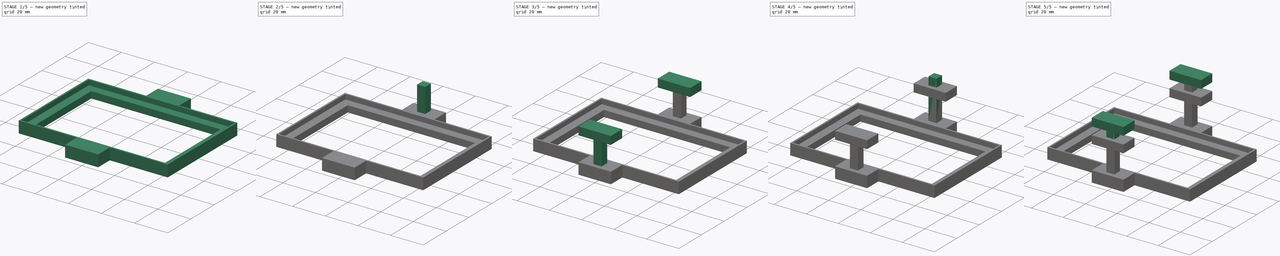
[diagram: build sequence overview — one tinted view per stage of 5, left to right]
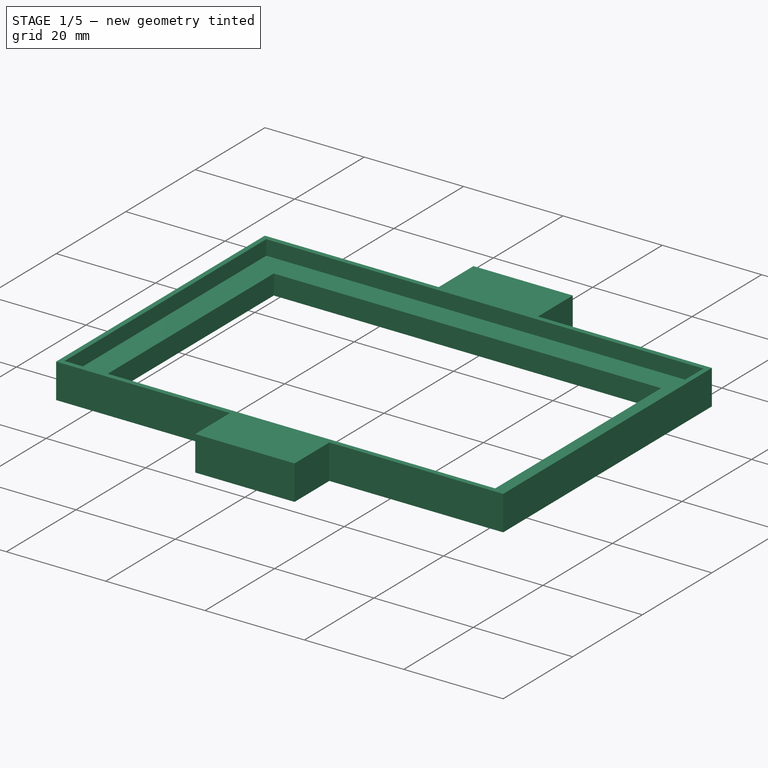
[diagram: stage 1 of 5 — iso view after this stage's code; geometry added in this stage tinted green]
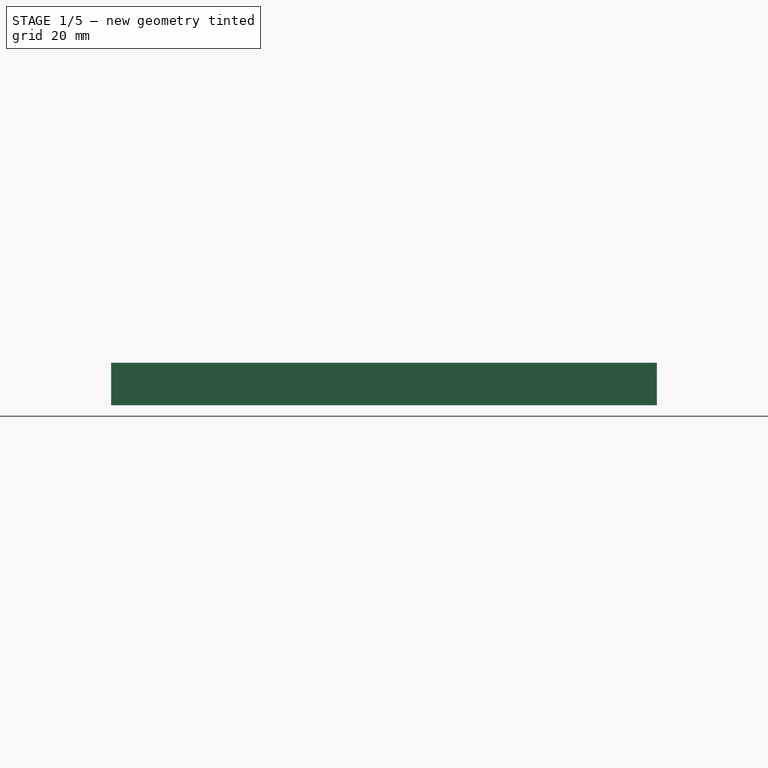
[diagram: stage 1 of 5 — front view after this stage's code; geometry added in this stage tinted green]
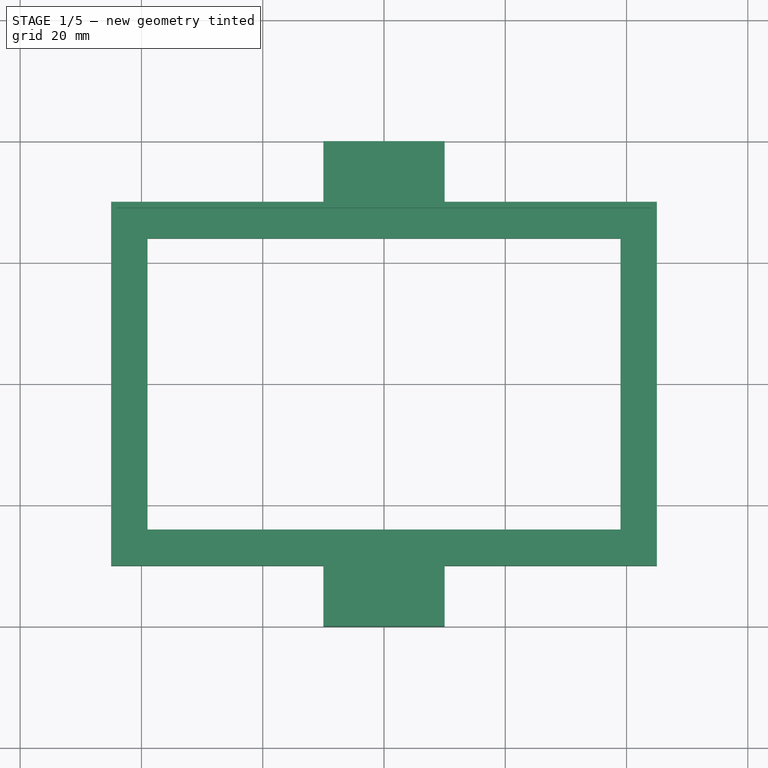
[diagram: stage 1 of 5 — top view after this stage's code; geometry added in this stage tinted green]
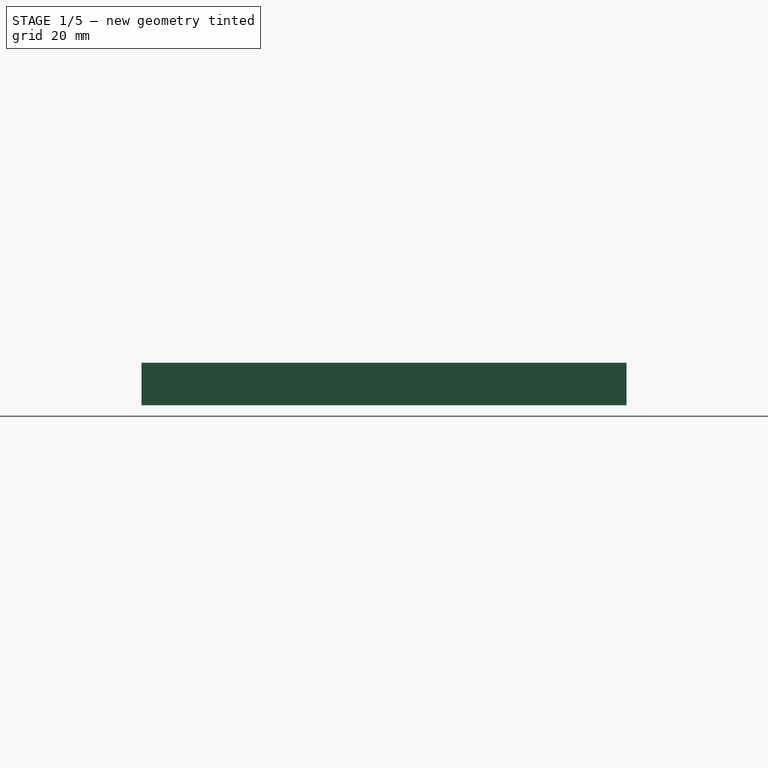
[diagram: stage 1 of 5 — right view after this stage's code; geometry added in this stage tinted green]
FCSTD DOCUMENT  (FreeCAD 0.19R24276 (Git))
Label: Gestell
License: All rights reserved
LicenseURL: http://en.wikipedia.org/wiki/All_rights_reserved
objects: Sketcher::SketchObject×17, PartDesign::Pad×11, PartDesign::Pocket×6, PartDesign::Body×3
note: 54 computed .brp shape members not serialized (recipe doc carries the construction recipe); baked Part::Feature solids carry a one-line shape summary decoded from their .brp

FEATURE [PartDesign::Body] Body001  label="unten"
  Group = -> [Sketch012,Pad006,Sketch010,Pocket003,Sketch011,Pocket002,Sketch016,Sketch014,Pad007,Pad005,Sketch015,Sketch013,Pad008,Pad009]
  Origin = -> Origin001
  Tip = -> Pad009
FEATURE [Sketcher::SketchObject] Sketch019
  FullyConstrained = false
  sketch-geometry (12):
    g0: LineSegment StartX=45 StartY=30 StartZ=0 EndX=45 EndY=-30 EndZ=0
    g1: LineSegment StartX=-45 StartY=-30 StartZ=0 EndX=-45 EndY=30 EndZ=0
    g2: LineSegment StartX=10 StartY=-30 StartZ=0 EndX=10 EndY=-40 EndZ=0
    g3: LineSegment StartX=10 StartY=-40 StartZ=0 EndX=-10 EndY=-40 EndZ=0
    g4: LineSegment StartX=-10 StartY=-40 StartZ=0 EndX=-10 EndY=-30 EndZ=0
    g5: LineSegment StartX=-10 StartY=40 StartZ=0 EndX=10 EndY=40 EndZ=0
    g6: LineSegment StartX=10 StartY=40 StartZ=0 EndX=10 EndY=30 EndZ=0
    g7: LineSegment StartX=-10 StartY=30 StartZ=0 EndX=-10 EndY=40 EndZ=0
    g8: LineSegment StartX=10 StartY=-30 StartZ=0 EndX=45 EndY=-30 EndZ=0
    g9: LineSegment StartX=-45 StartY=30 StartZ=0 EndX=-10 EndY=30 EndZ=0
    g10: LineSegment StartX=10 StartY=30 StartZ=0 EndX=45 EndY=30 EndZ=0
    g11: LineSegment StartX=-10 StartY=-30 StartZ=0 EndX=-45 EndY=-30 EndZ=0
  constraints (34):
    c: Vertical(g0)
    c: Vertical(g1)
    c: DistanceY(g0,g0) = 60
    c: DistanceX(g1,g0) = 90
    c: DistanceY(g0,g-1) = 30
    c: DistanceX(g1,g-1) = 45
    c: Coincident(g2,g3)
    c: Coincident(g3,g4)
    c: Horizontal(g3)
    c: Vertical(g2)
    c: Vertical(g4)
    c: DistanceY(g2,g2) = 10
    c: DistanceX(g4,g2) = 20
    c: DistanceX(g4,g-1) = 10
    c: Coincident(g5,g6)
    c: Coincident(g7,g5)
    c: Horizontal(g5)
    c: Vertical(g6)
    c: Vertical(g7)
    c: DistanceY(g6,g6) = 10
    c: DistanceX(g5,g5) = 20
    c: DistanceX(g-1,g6) = 10
    c: Coincident(g8,g2)
    c: Coincident(g8,g0)
    c: Horizontal(g8)
    c: Coincident(g9,g1)
    c: Coincident(g9,g7)
    c: Horizontal(g9)
    c: Coincident(g10,g6)
    c: Coincident(g10,g0)
    c: Horizontal(g10)
    c: Coincident(g11,g4)
    c: Coincident(g11,g1)
    c: Horizontal(g11)
FEATURE [PartDesign::Pad] Pad011
  Direction = (1,1,1)
  Length = 7
  Length2 = 100
  Profile = -> Sketch019
  Type = 0
FEATURE [Sketcher::SketchObject] Sketch017
  FullyConstrained = true
  MapMode = 5
  Placement = pos=(0,0,7) rot=(0,0,1;0rad)
  Support = -> [Pad011]
  sketch-geometry (4):
    g0: LineSegment StartX=-44 StartY=29 StartZ=0 EndX=44 EndY=29 EndZ=0
    g1: LineSegment StartX=44 StartY=29 StartZ=0 EndX=44 EndY=-29 EndZ=0
    g2: LineSegment StartX=44 StartY=-29 StartZ=0 EndX=-44 EndY=-29 EndZ=0
    g3: LineSegment StartX=-44 StartY=-29 StartZ=0 EndX=-44 EndY=29 EndZ=0
  constraints (12):
    c: Coincident(g0,g1)
    c: Coincident(g1,g2)
    c: Coincident(g2,g3)
    c: Coincident(g3,g0)
    c: Horizontal(g0)
    c: Horizontal(g2)
    c: Vertical(g1)
    c: Vertical(g3)
    c: DistanceY(g1,g1) = 58
    c: DistanceX(g0,g0) = 88
    c: DistanceX(g0,g-1) = 44
    c: DistanceY(g1,g-1) = 29
FEATURE [PartDesign::Pocket] Pocket005
  BaseFeature = -> Pad011
  Length = 3
  Length2 = 100
  Profile = -> Sketch017
  Type = 0
FEATURE [Sketcher::SketchObject] Sketch018
  FullyConstrained = true
  MapMode = 5
  Placement = pos=(0,0,4) rot=(0,0,1;0rad)
  Support = -> [Pocket005]
  sketch-geometry (4):
    g0: LineSegment StartX=-39 StartY=24 StartZ=0 EndX=39 EndY=24 EndZ=0
    g1: LineSegment StartX=39 StartY=24 StartZ=0 EndX=39 EndY=-24 EndZ=0
    g2: LineSegment StartX=39 StartY=-24 StartZ=0 EndX=-39 EndY=-24 EndZ=0
    g3: LineSegment StartX=-39 StartY=-24 StartZ=0 EndX=-39 EndY=24 EndZ=0
  constraints (12):
    c: Coincident(g0,g1)
    c: Coincident(g1,g2)
    c: Coincident(g2,g3)
    c: Coincident(g3,g0)
    c: Horizontal(g0)
    c: Horizontal(g2)
    c: Vertical(g1)
    c: Vertical(g3)
    c: DistanceX(g0,g0) = 78
    c: DistanceY(g1,g1) = 48
    c: DistanceY(g1,g-1) = 24
    c: DistanceX(g0,g-1) = 39
FEATURE [PartDesign::Pocket] Pocket004
  BaseFeature = -> Pocket005
  Length = 5
  Length2 = 100
  Profile = -> Sketch018
  Type = 0
FEATURE [PartDesign::Body] Body002  label="oben"
  Group = -> [Sketch019,Pad011,Sketch017,Pocket005,Sketch018,Pocket004]
  Origin = -> Origin002
  Tip = -> Pocket004
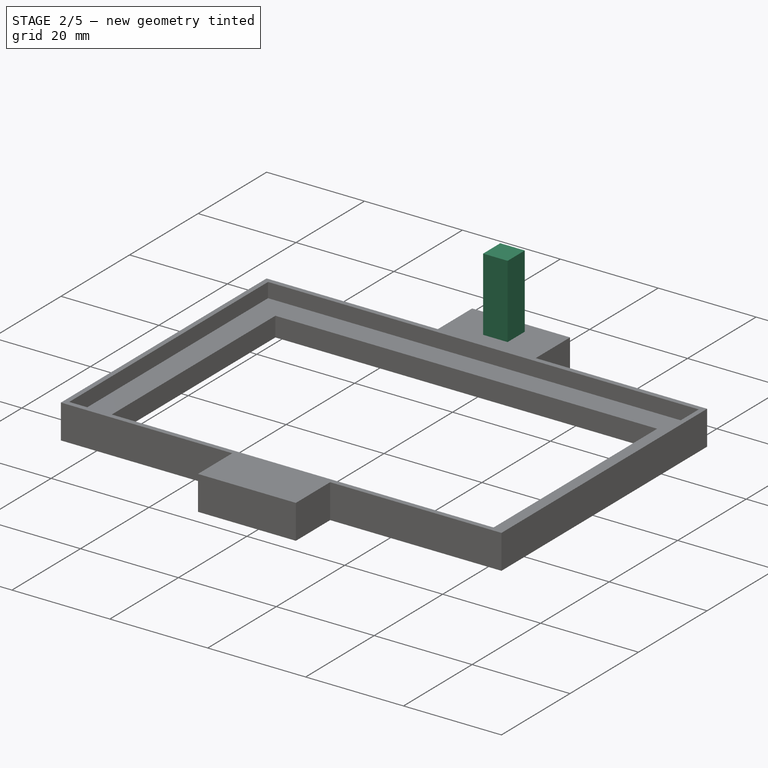
[diagram: stage 2 of 5 — iso view after this stage's code; geometry added in this stage tinted green]
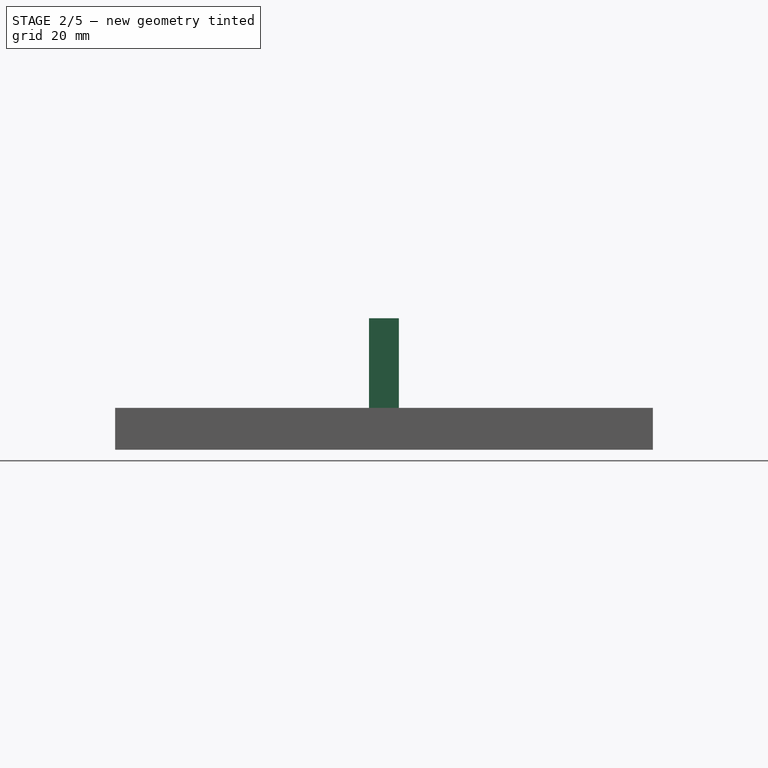
[diagram: stage 2 of 5 — front view after this stage's code; geometry added in this stage tinted green]
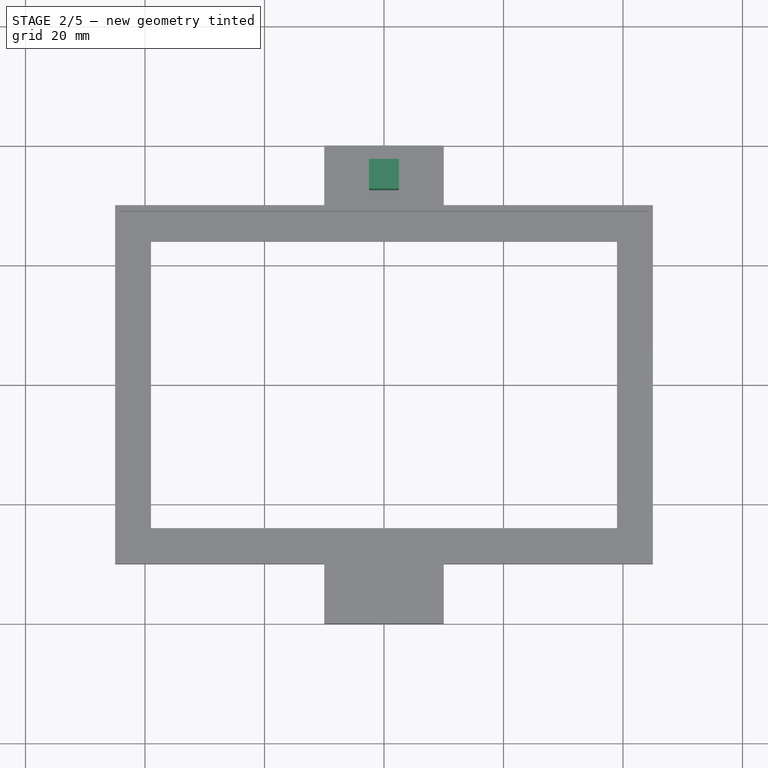
[diagram: stage 2 of 5 — top view after this stage's code; geometry added in this stage tinted green]
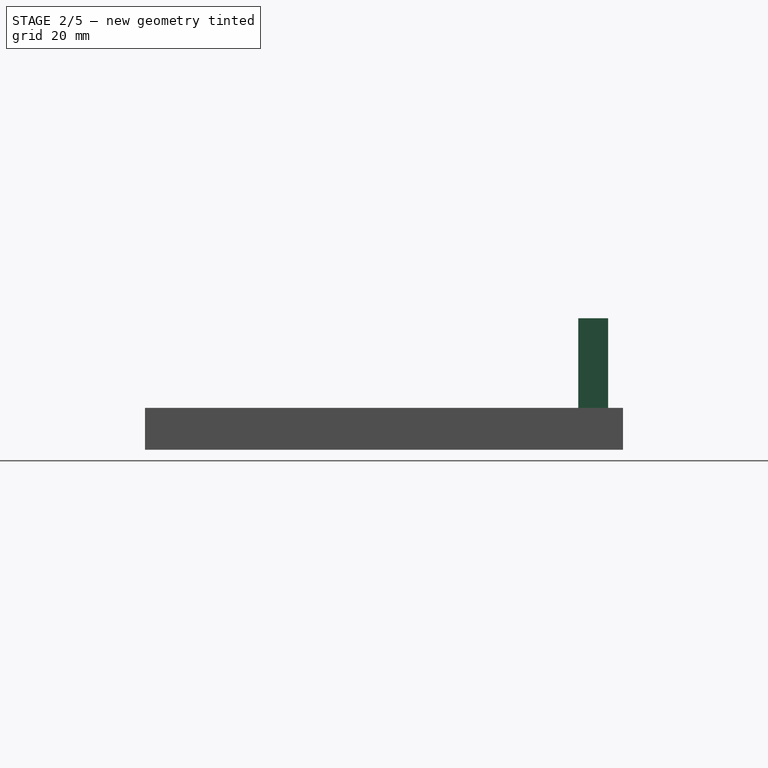
[diagram: stage 2 of 5 — right view after this stage's code; geometry added in this stage tinted green]
FEATURE [PartDesign::Body] Body  label="mitte"
  Group = -> [Sketch004,Pad,Sketch005,Pocket,Sketch,Pocket001,Sketch006,Sketch007,Pad001,Pad002,Sketch008,Sketch009,Pad003,Pad004]
  Origin = -> Origin
  Tip = -> Pad004
FEATURE [Sketcher::SketchObject] Sketch012
  FullyConstrained = false
  sketch-geometry (12):
    g0: LineSegment StartX=45 StartY=30 StartZ=0 EndX=45 EndY=-30 EndZ=0
    g1: LineSegment StartX=-45 StartY=-30 StartZ=0 EndX=-45 EndY=30 EndZ=0
    g2: LineSegment StartX=10 StartY=-30 StartZ=0 EndX=10 EndY=-40 EndZ=0
    g3: LineSegment StartX=10 StartY=-40 StartZ=0 EndX=-10 EndY=-40 EndZ=0
    g4: LineSegment StartX=-10 StartY=-40 StartZ=0 EndX=-10 EndY=-30 EndZ=0
    g5: LineSegment StartX=-10 StartY=40 StartZ=0 EndX=10 EndY=40 EndZ=0
    g6: LineSegment StartX=10 StartY=40 StartZ=0 EndX=10 EndY=30 EndZ=0
    g7: LineSegment StartX=-10 StartY=30 StartZ=0 EndX=-10 EndY=40 EndZ=0
    g8: LineSegment StartX=10 StartY=-30 StartZ=0 EndX=45 EndY=-30 EndZ=0
    g9: LineSegment StartX=-45 StartY=30 StartZ=0 EndX=-10 EndY=30 EndZ=0
    g10: LineSegment StartX=10 StartY=30 StartZ=0 EndX=45 EndY=30 EndZ=0
    g11: LineSegment StartX=-10 StartY=-30 StartZ=0 EndX=-45 EndY=-30 EndZ=0
  constraints (34):
    c: Vertical(g0)
    c: Vertical(g1)
    c: DistanceY(g0,g0) = 60
    c: DistanceX(g1,g0) = 90
    c: DistanceY(g0,g-1) = 30
    c: DistanceX(g1,g-1) = 45
    c: Coincident(g2,g3)
    c: Coincident(g3,g4)
    c: Horizontal(g3)
    c: Vertical(g2)
    c: Vertical(g4)
    c: DistanceY(g2,g2) = 10
    c: DistanceX(g4,g2) = 20
    c: DistanceX(g4,g-1) = 10
    c: Coincident(g5,g6)
    c: Coincident(g7,g5)
    c: Horizontal(g5)
    c: Vertical(g6)
    c: Vertical(g7)
    c: DistanceY(g6,g6) = 10
    c: DistanceX(g5,g5) = 20
    c: DistanceX(g-1,g6) = 10
    c: Coincident(g8,g2)
    c: Coincident(g8,g0)
    c: Horizontal(g8)
    c: Coincident(g9,g1)
    c: Coincident(g9,g7)
    c: Horizontal(g9)
    c: Coincident(g10,g6)
    c: Coincident(g10,g0)
    c: Horizontal(g10)
    c: Coincident(g11,g4)
    c: Coincident(g11,g1)
    c: Horizontal(g11)
FEATURE [PartDesign::Pad] Pad006
  Direction = (1,1,1)
  Length = 7
  Length2 = 100
  Profile = -> Sketch012
  Type = 0
FEATURE [Sketcher::SketchObject] Sketch010
  FullyConstrained = true
  MapMode = 5
  Placement = pos=(0,0,7) rot=(0,0,1;0rad)
  Support = -> [Pad006]
  sketch-geometry (4):
    g0: LineSegment StartX=-44 StartY=29 StartZ=0 EndX=44 EndY=29 EndZ=0
    g1: LineSegment StartX=44 StartY=29 StartZ=0 EndX=44 EndY=-29 EndZ=0
    g2: LineSegment StartX=44 StartY=-29 StartZ=0 EndX=-44 EndY=-29 EndZ=0
    g3: LineSegment StartX=-44 StartY=-29 StartZ=0 EndX=-44 EndY=29 EndZ=0
  constraints (12):
    c: Coincident(g0,g1)
    c: Coincident(g1,g2)
    c: Coincident(g2,g3)
    c: Coincident(g3,g0)
    c: Horizontal(g0)
    c: Horizontal(g2)
    c: Vertical(g1)
    c: Vertical(g3)
    c: DistanceY(g1,g1) = 58
    c: DistanceX(g0,g0) = 88
    c: DistanceX(g0,g-1) = 44
    c: DistanceY(g1,g-1) = 29
FEATURE [PartDesign::Pocket] Pocket003
  BaseFeature = -> Pad006
  Length = 3
  Length2 = 100
  Profile = -> Sketch010
  Type = 0
FEATURE [Sketcher::SketchObject] Sketch011
  FullyConstrained = true
  MapMode = 5
  Placement = pos=(0,0,4) rot=(0,0,1;0rad)
  Support = -> [Pocket003]
  sketch-geometry (4):
    g0: LineSegment StartX=-39 StartY=24 StartZ=0 EndX=39 EndY=24 EndZ=0
    g1: LineSegment StartX=39 StartY=24 StartZ=0 EndX=39 EndY=-24 EndZ=0
    g2: LineSegment StartX=39 StartY=-24 StartZ=0 EndX=-39 EndY=-24 EndZ=0
    g3: LineSegment StartX=-39 StartY=-24 StartZ=0 EndX=-39 EndY=24 EndZ=0
  constraints (12):
    c: Coincident(g0,g1)
    c: Coincident(g1,g2)
    c: Coincident(g2,g3)
    c: Coincident(g3,g0)
    c: Horizontal(g0)
    c: Horizontal(g2)
    c: Vertical(g1)
    c: Vertical(g3)
    c: DistanceX(g0,g0) = 78
    c: DistanceY(g1,g1) = 48
    c: DistanceY(g1,g-1) = 24
    c: DistanceX(g0,g-1) = 39
FEATURE [PartDesign::Pocket] Pocket002
  BaseFeature = -> Pocket003
  Length = 5
  Length2 = 100
  Profile = -> Sketch011
  Type = 0
FEATURE [Sketcher::SketchObject] Sketch014
  ExternalGeometry = -> [Sketch012]
  FullyConstrained = true
  MapMode = 5
  Placement = pos=(0,0,7) rot=(0,0,1;0rad)
  Support = -> [Pocket002]
  sketch-geometry (4):
    g0: LineSegment StartX=-2.5 StartY=-32.5 StartZ=0 EndX=2.5 EndY=-32.5 EndZ=0
    g1: LineSegment StartX=2.5 StartY=-32.5 StartZ=0 EndX=2.5 EndY=-37.5 EndZ=0
    g2: LineSegment StartX=2.5 StartY=-37.5 StartZ=0 EndX=-2.5 EndY=-37.5 EndZ=0
    g3: LineSegment StartX=-2.5 StartY=-37.5 StartZ=0 EndX=-2.5 EndY=-32.5 EndZ=0
  constraints (12):
    c: Coincident(g0,g1)
    c: Coincident(g1,g2)
    c: Coincident(g2,g3)
    c: Coincident(g3,g0)
    c: Horizontal(g0)
    c: Horizontal(g2)
    c: Vertical(g1)
    c: Vertical(g3)
    c: DistanceY(g1,g1) = 5
    c: DistanceX(g0,g0) = 5
    c: DistanceX(g1,g-3) = 7.5
    c: DistanceY(g-4,g1) = 2.5
FEATURE [Sketcher::SketchObject] Sketch016
  ExternalGeometry = -> [Sketch012]
  FullyConstrained = true
  MapMode = 5
  Placement = pos=(0,0,7) rot=(0,0,1;0rad)
  Support = -> [Pocket002]
  sketch-geometry (4):
    g0: LineSegment StartX=-2.5 StartY=37.5 StartZ=0 EndX=2.5 EndY=37.5 EndZ=0
    g1: LineSegment StartX=2.5 StartY=37.5 StartZ=0 EndX=2.5 EndY=32.5 EndZ=0
    g2: LineSegment StartX=2.5 StartY=32.5 StartZ=0 EndX=-2.5 EndY=32.5 EndZ=0
    g3: LineSegment StartX=-2.5 StartY=32.5 StartZ=0 EndX=-2.5 EndY=37.5 EndZ=0
  constraints (12):
    c: Coincident(g0,g1)
    c: Coincident(g1,g2)
    c: Coincident(g2,g3)
    c: Coincident(g3,g0)
    c: Horizontal(g0)
    c: Horizontal(g2)
    c: Vertical(g1)
    c: Vertical(g3)
    c: DistanceY(g1,g1) = 5
    c: DistanceX(g2,g2) = 5
    c: DistanceY(g0,g-4) = 2.5
    c: DistanceX(g1,g-3) = 7.5
FEATURE [PartDesign::Pad] Pad007
  BaseFeature = -> Pocket002
  Direction = (1,1,1)
  Length = 15
  Length2 = 100
  Profile = -> Sketch016
  Type = 0
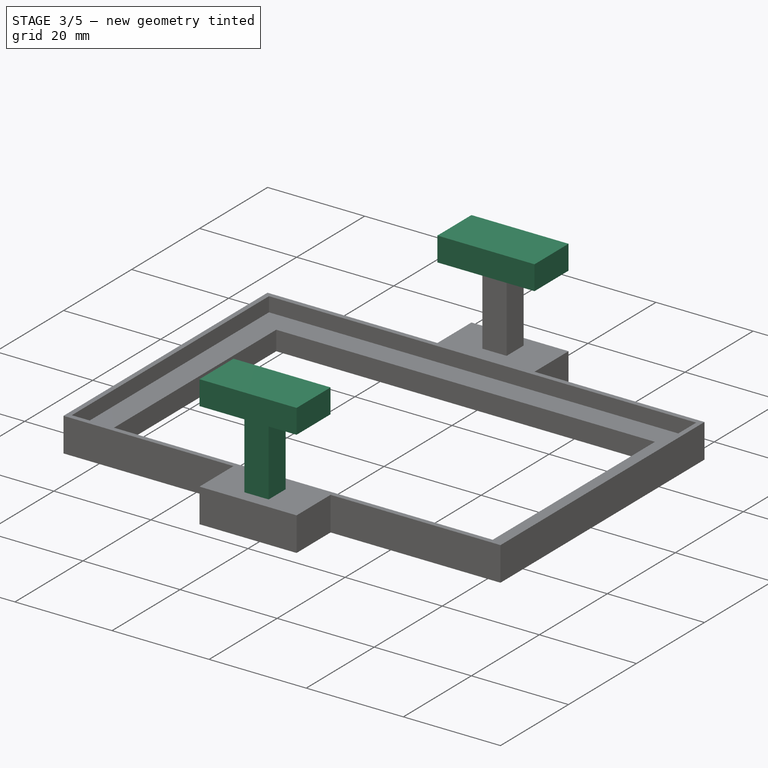
[diagram: stage 3 of 5 — iso view after this stage's code; geometry added in this stage tinted green]
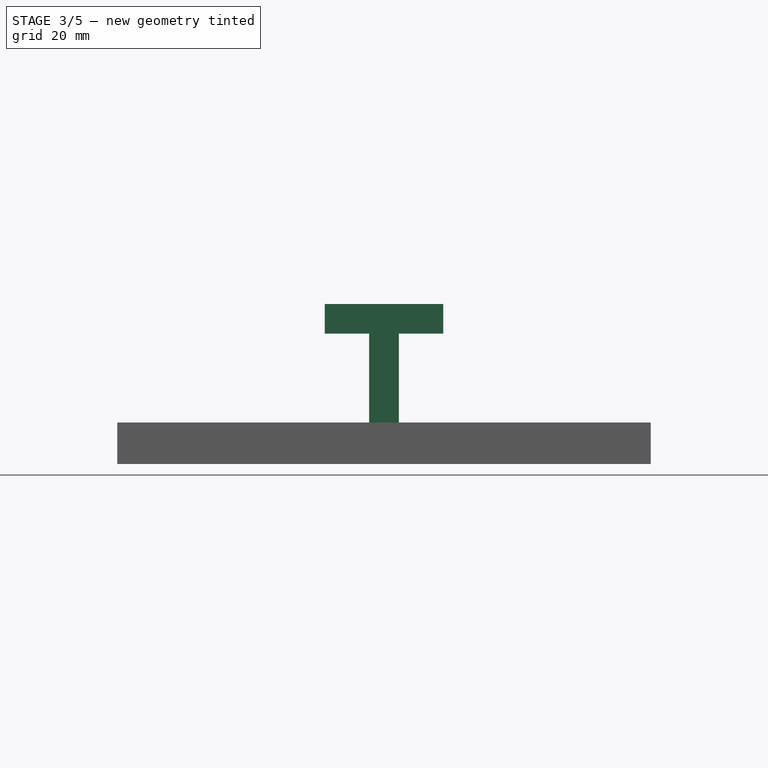
[diagram: stage 3 of 5 — front view after this stage's code; geometry added in this stage tinted green]
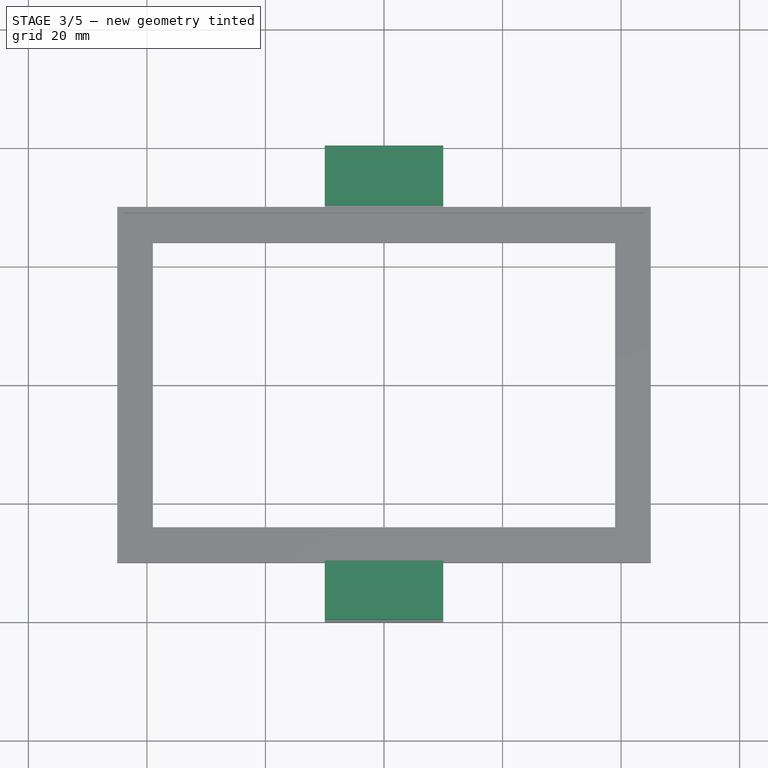
[diagram: stage 3 of 5 — top view after this stage's code; geometry added in this stage tinted green]
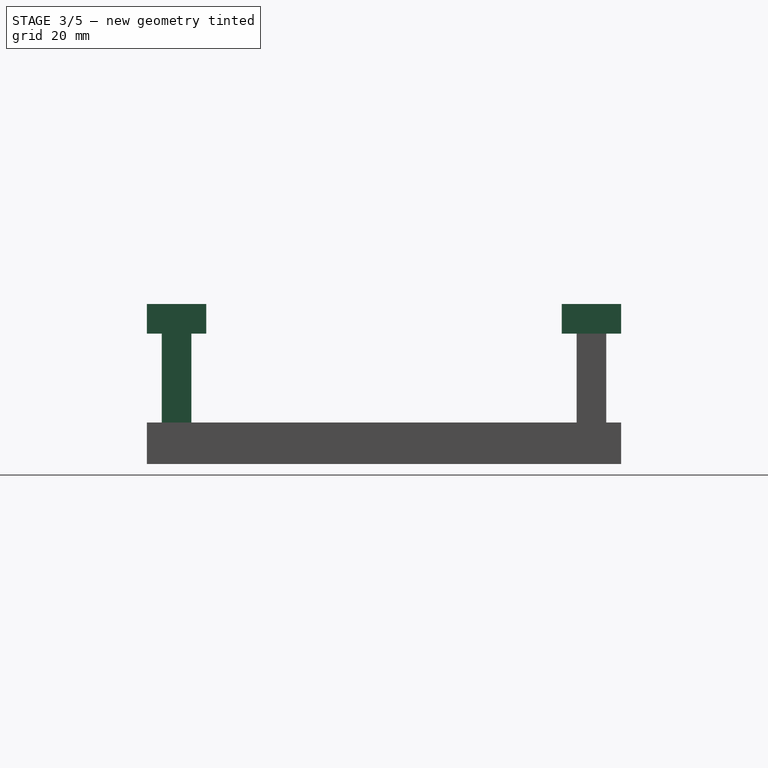
[diagram: stage 3 of 5 — right view after this stage's code; geometry added in this stage tinted green]
FEATURE [PartDesign::Pad] Pad005
  BaseFeature = -> Pad007
  Direction = (1,1,1)
  Length = 15
  Length2 = 100
  Profile = -> Sketch014
  Type = 0
FEATURE [Sketcher::SketchObject] Sketch013
  ExternalGeometry = -> [Sketch012]
  FullyConstrained = true
  MapMode = 5
  Placement = pos=(0,0,22) rot=(0,0,1;0rad)
  Support = -> [Pad005]
  sketch-geometry (4):
    g0: LineSegment StartX=-10 StartY=40 StartZ=0 EndX=10 EndY=40 EndZ=0
    g1: LineSegment StartX=10 StartY=40 StartZ=0 EndX=10 EndY=30 EndZ=0
    g2: LineSegment StartX=10 StartY=30 StartZ=0 EndX=-10 EndY=30 EndZ=0
    g3: LineSegment StartX=-10 StartY=30 StartZ=0 EndX=-10 EndY=40 EndZ=0
  constraints (10):
    c: Coincident(g0,g1)
    c: Coincident(g1,g2)
    c: Coincident(g2,g3)
    c: Coincident(g3,g0)
    c: Horizontal(g0)
    c: Horizontal(g2)
    c: Vertical(g1)
    c: Vertical(g3)
    c: Coincident(g0,g-4)
    c: Coincident(g1,g-5)
FEATURE [Sketcher::SketchObject] Sketch015
  ExternalGeometry = -> [Pad005,Sketch012]
  FullyConstrained = true
  MapMode = 5
  Placement = pos=(0,0,22) rot=(0,0,1;0rad)
  Support = -> [Pad005]
  sketch-geometry (4):
    g0: LineSegment StartX=-10 StartY=-30 StartZ=0 EndX=10 EndY=-30 EndZ=0
    g1: LineSegment StartX=10 StartY=-30 StartZ=0 EndX=10 EndY=-40 EndZ=0
    g2: LineSegment StartX=10 StartY=-40 StartZ=0 EndX=-10 EndY=-40 EndZ=0
    g3: LineSegment StartX=-10 StartY=-40 StartZ=0 EndX=-10 EndY=-30 EndZ=0
  constraints (10):
    c: Coincident(g0,g1)
    c: Coincident(g1,g2)
    c: Coincident(g2,g3)
    c: Coincident(g3,g0)
    c: Horizontal(g0)
    c: Horizontal(g2)
    c: Vertical(g1)
    c: Vertical(g3)
    c: Coincident(g0,g-4)
    c: Coincident(g1,g-6)
FEATURE [PartDesign::Pad] Pad008
  BaseFeature = -> Pad005
  Direction = (1,1,1)
  Length = 5
  Length2 = 100
  Profile = -> Sketch015
  Type = 0
FEATURE [PartDesign::Pad] Pad009
  BaseFeature = -> Pad008
  Direction = (1,1,1)
  Length = 5
  Length2 = 100
  Profile = -> Sketch013
  Type = 0
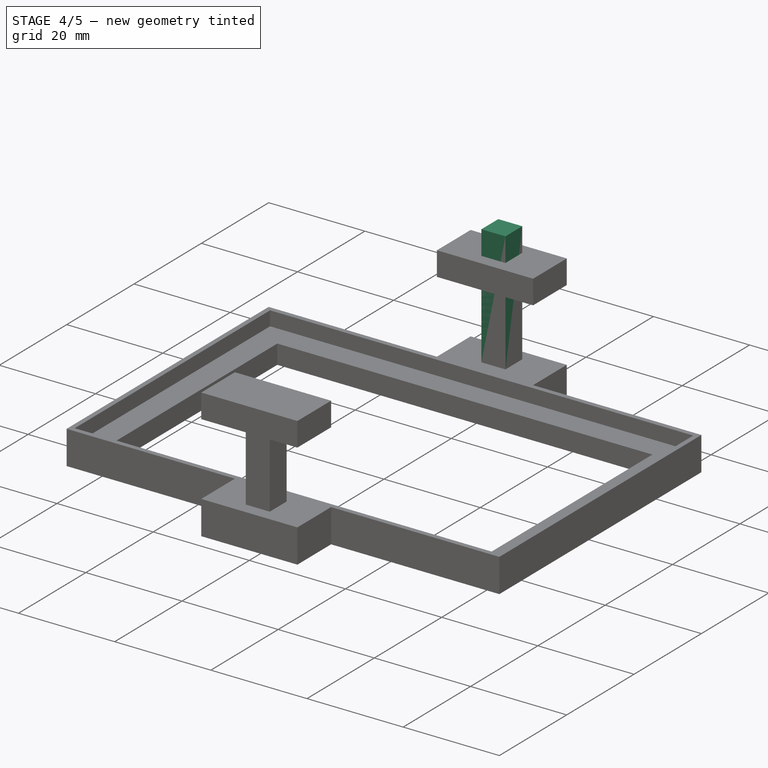
[diagram: stage 4 of 5 — iso view after this stage's code; geometry added in this stage tinted green]
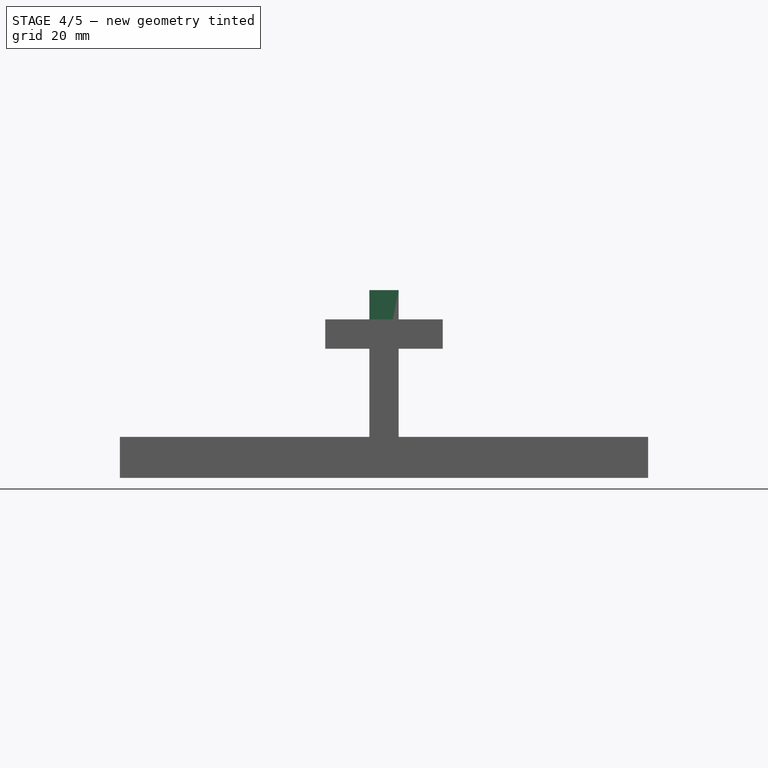
[diagram: stage 4 of 5 — front view after this stage's code; geometry added in this stage tinted green]
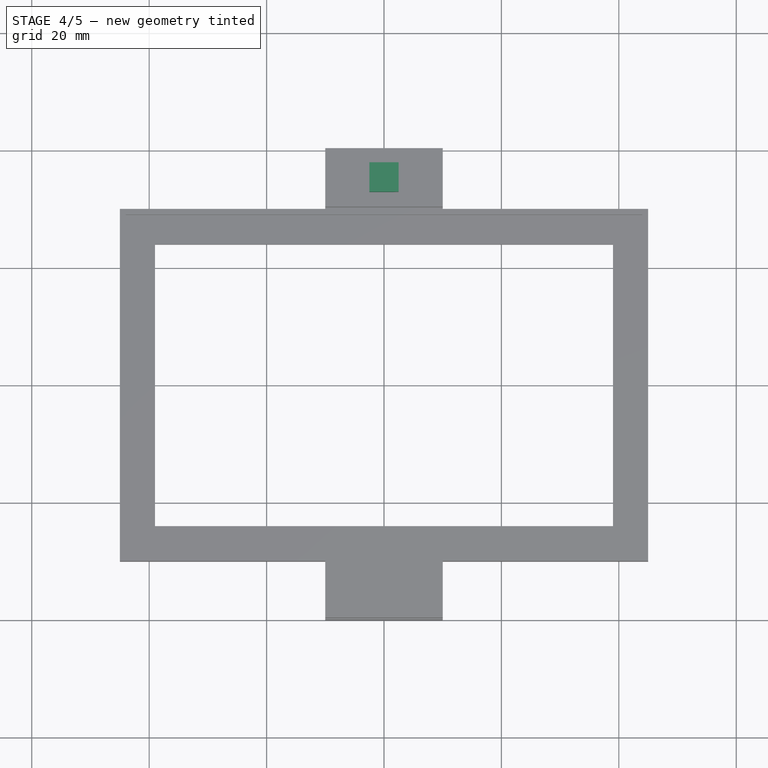
[diagram: stage 4 of 5 — top view after this stage's code; geometry added in this stage tinted green]
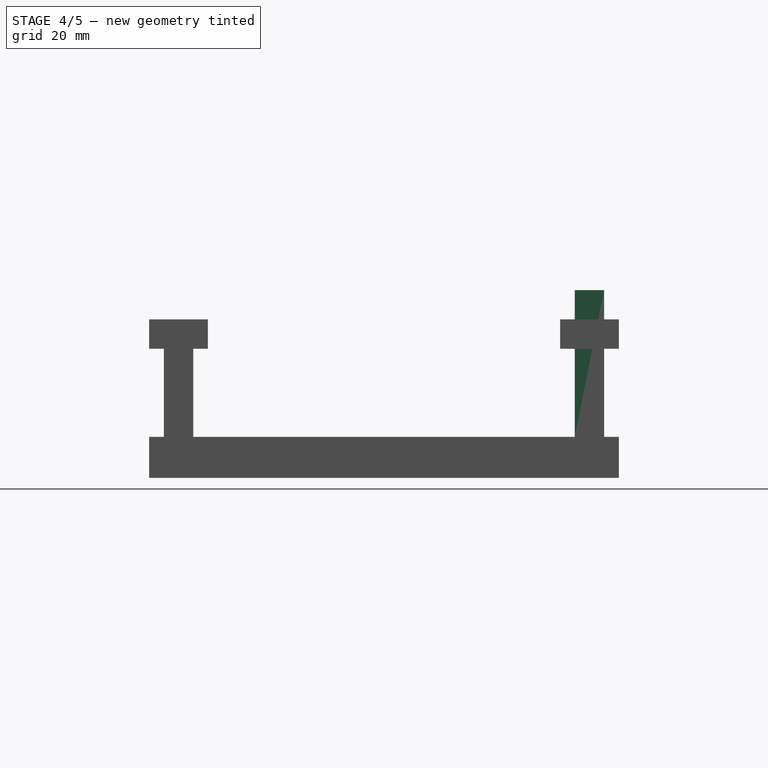
[diagram: stage 4 of 5 — right view after this stage's code; geometry added in this stage tinted green]
FEATURE [Sketcher::SketchObject] Sketch004
  FullyConstrained = false
  sketch-geometry (12):
    g0: LineSegment StartX=45 StartY=30 StartZ=0 EndX=45 EndY=-30 EndZ=0
    g1: LineSegment StartX=-45 StartY=-30 StartZ=0 EndX=-45 EndY=30 EndZ=0
    g2: LineSegment StartX=10 StartY=-30 StartZ=0 EndX=10 EndY=-40 EndZ=0
    g3: LineSegment StartX=10 StartY=-40 StartZ=0 EndX=-10 EndY=-40 EndZ=0
    g4: LineSegment StartX=-10 StartY=-40 StartZ=0 EndX=-10 EndY=-30 EndZ=0
    g5: LineSegment StartX=-10 StartY=40 StartZ=0 EndX=10 EndY=40 EndZ=0
    g6: LineSegment StartX=10 StartY=40 StartZ=0 EndX=10 EndY=30 EndZ=0
    g7: LineSegment StartX=-10 StartY=30 StartZ=0 EndX=-10 EndY=40 EndZ=0
    g8: LineSegment StartX=10 StartY=-30 StartZ=0 EndX=45 EndY=-30 EndZ=0
    g9: LineSegment StartX=-45 StartY=30 StartZ=0 EndX=-10 EndY=30 EndZ=0
    g10: LineSegment StartX=10 StartY=30 StartZ=0 EndX=45 EndY=30 EndZ=0
    g11: LineSegment StartX=-10 StartY=-30 StartZ=0 EndX=-45 EndY=-30 EndZ=0
  constraints (34):
    c: Vertical(g0)
    c: Vertical(g1)
    c: DistanceY(g0,g0) = 60
    c: DistanceX(g1,g0) = 90
    c: DistanceY(g0,g-1) = 30
    c: DistanceX(g1,g-1) = 45
    c: Coincident(g2,g3)
    c: Coincident(g3,g4)
    c: Horizontal(g3)
    c: Vertical(g2)
    c: Vertical(g4)
    c: DistanceY(g2,g2) = 10
    c: DistanceX(g4,g2) = 20
    c: DistanceX(g4,g-1) = 10
    c: Coincident(g5,g6)
    c: Coincident(g7,g5)
    c: Horizontal(g5)
    c: Vertical(g6)
    c: Vertical(g7)
    c: DistanceY(g6,g6) = 10
    c: DistanceX(g5,g5) = 20
    c: DistanceX(g-1,g6) = 10
    c: Coincident(g8,g2)
    c: Coincident(g8,g0)
    c: Horizontal(g8)
    c: Coincident(g9,g1)
    c: Coincident(g9,g7)
    c: Horizontal(g9)
    c: Coincident(g10,g6)
    c: Coincident(g10,g0)
    c: Horizontal(g10)
    c: Coincident(g11,g4)
    c: Coincident(g11,g1)
    c: Horizontal(g11)
FEATURE [PartDesign::Pad] Pad
  Direction = (1,1,1)
  Length = 7
  Length2 = 100
  Profile = -> Sketch004
  Type = 0
FEATURE [Sketcher::SketchObject] Sketch005
  FullyConstrained = true
  MapMode = 5
  Placement = pos=(0,0,7) rot=(0,0,1;0rad)
  Support = -> [Pad]
  sketch-geometry (4):
    g0: LineSegment StartX=-44 StartY=29 StartZ=0 EndX=44 EndY=29 EndZ=0
    g1: LineSegment StartX=44 StartY=29 StartZ=0 EndX=44 EndY=-29 EndZ=0
    g2: LineSegment StartX=44 StartY=-29 StartZ=0 EndX=-44 EndY=-29 EndZ=0
    g3: LineSegment StartX=-44 StartY=-29 StartZ=0 EndX=-44 EndY=29 EndZ=0
  constraints (12):
    c: Coincident(g0,g1)
    c: Coincident(g1,g2)
    c: Coincident(g2,g3)
    c: Coincident(g3,g0)
    c: Horizontal(g0)
    c: Horizontal(g2)
    c: Vertical(g1)
    c: Vertical(g3)
    c: DistanceY(g1,g1) = 58
    c: DistanceX(g0,g0) = 88
    c: DistanceX(g0,g-1) = 44
    c: DistanceY(g1,g-1) = 29
FEATURE [PartDesign::Pocket] Pocket
  BaseFeature = -> Pad
  Length = 3
  Length2 = 100
  Profile = -> Sketch005
  Type = 0
FEATURE [Sketcher::SketchObject] Sketch
  FullyConstrained = true
  MapMode = 5
  Placement = pos=(0,0,4) rot=(0,0,1;0rad)
  Support = -> [Pocket]
  sketch-geometry (4):
    g0: LineSegment StartX=-39 StartY=24 StartZ=0 EndX=39 EndY=24 EndZ=0
    g1: LineSegment StartX=39 StartY=24 StartZ=0 EndX=39 EndY=-24 EndZ=0
    g2: LineSegment StartX=39 StartY=-24 StartZ=0 EndX=-39 EndY=-24 EndZ=0
    g3: LineSegment StartX=-39 StartY=-24 StartZ=0 EndX=-39 EndY=24 EndZ=0
  constraints (12):
    c: Coincident(g0,g1)
    c: Coincident(g1,g2)
    c: Coincident(g2,g3)
    c: Coincident(g3,g0)
    c: Horizontal(g0)
    c: Horizontal(g2)
    c: Vertical(g1)
    c: Vertical(g3)
    c: DistanceX(g0,g0) = 78
    c: DistanceY(g1,g1) = 48
    c: DistanceY(g1,g-1) = 24
    c: DistanceX(g0,g-1) = 39
FEATURE [PartDesign::Pocket] Pocket001
  BaseFeature = -> Pocket
  Length = 5
  Length2 = 100
  Profile = -> Sketch
  Type = 0
FEATURE [Sketcher::SketchObject] Sketch006
  ExternalGeometry = -> [Sketch004]
  FullyConstrained = true
  MapMode = 5
  Placement = pos=(0,0,7) rot=(0,0,1;0rad)
  Support = -> [Pocket001]
  sketch-geometry (4):
    g0: LineSegment StartX=-2.5 StartY=37.5 StartZ=0 EndX=2.5 EndY=37.5 EndZ=0
    g1: LineSegment StartX=2.5 StartY=37.5 StartZ=0 EndX=2.5 EndY=32.5 EndZ=0
    g2: LineSegment StartX=2.5 StartY=32.5 StartZ=0 EndX=-2.5 EndY=32.5 EndZ=0
    g3: LineSegment StartX=-2.5 StartY=32.5 StartZ=0 EndX=-2.5 EndY=37.5 EndZ=0
  constraints (12):
    c: Coincident(g0,g1)
    c: Coincident(g1,g2)
    c: Coincident(g2,g3)
    c: Coincident(g3,g0)
    c: Horizontal(g0)
    c: Horizontal(g2)
    c: Vertical(g1)
    c: Vertical(g3)
    c: DistanceY(g1,g1) = 5
    c: DistanceX(g2,g2) = 5
    c: DistanceY(g0,g-4) = 2.5
    c: DistanceX(g1,g-3) = 7.5
FEATURE [Sketcher::SketchObject] Sketch007
  ExternalGeometry = -> [Sketch004]
  FullyConstrained = true
  MapMode = 5
  Placement = pos=(0,0,7) rot=(0,0,1;0rad)
  Support = -> [Pocket001]
  sketch-geometry (4):
    g0: LineSegment StartX=-2.5 StartY=-32.5 StartZ=0 EndX=2.5 EndY=-32.5 EndZ=0
    g1: LineSegment StartX=2.5 StartY=-32.5 StartZ=0 EndX=2.5 EndY=-37.5 EndZ=0
    g2: LineSegment StartX=2.5 StartY=-37.5 StartZ=0 EndX=-2.5 EndY=-37.5 EndZ=0
    g3: LineSegment StartX=-2.5 StartY=-37.5 StartZ=0 EndX=-2.5 EndY=-32.5 EndZ=0
  constraints (12):
    c: Coincident(g0,g1)
    c: Coincident(g1,g2)
    c: Coincident(g2,g3)
    c: Coincident(g3,g0)
    c: Horizontal(g0)
    c: Horizontal(g2)
    c: Vertical(g1)
    c: Vertical(g3)
    c: DistanceY(g1,g1) = 5
    c: DistanceX(g0,g0) = 5
    c: DistanceX(g1,g-3) = 7.5
    c: DistanceY(g-4,g1) = 2.5
FEATURE [PartDesign::Pad] Pad001
  BaseFeature = -> Pocket001
  Direction = (1,1,1)
  Length = 25
  Length2 = 100
  Profile = -> Sketch006
  Type = 0
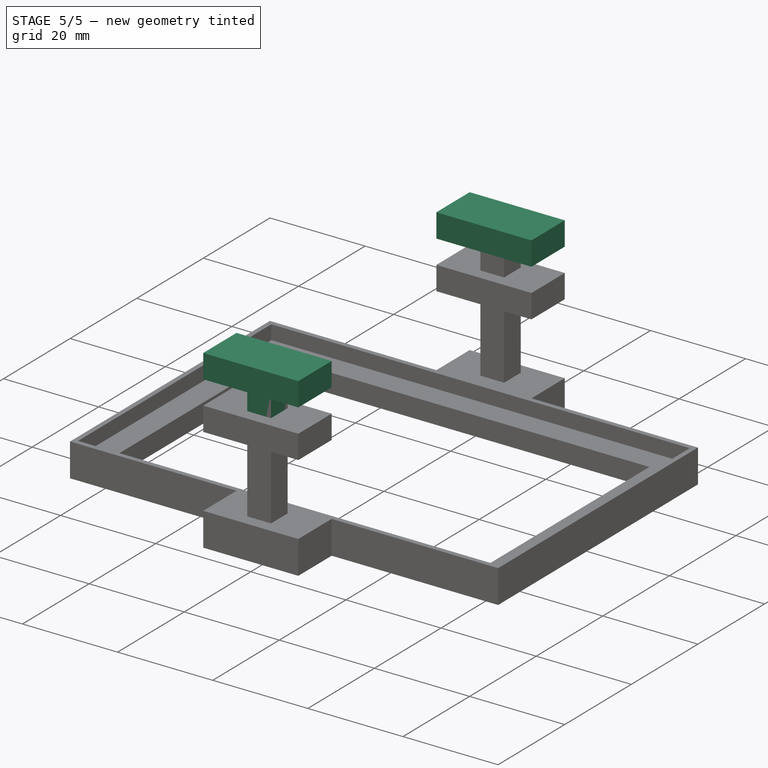
[diagram: stage 5 of 5 — iso view after this stage's code; geometry added in this stage tinted green]
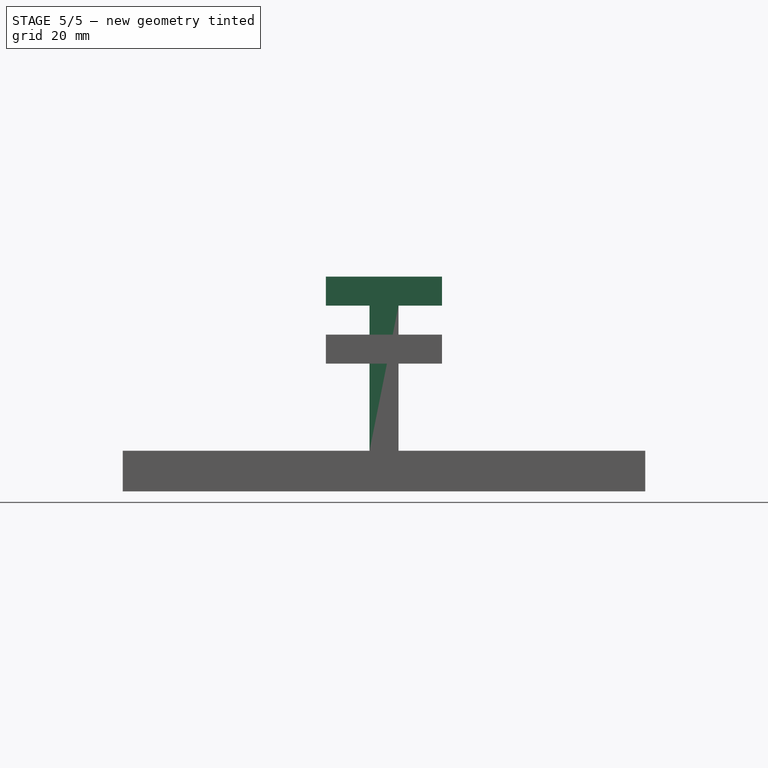
[diagram: stage 5 of 5 — front view after this stage's code; geometry added in this stage tinted green]
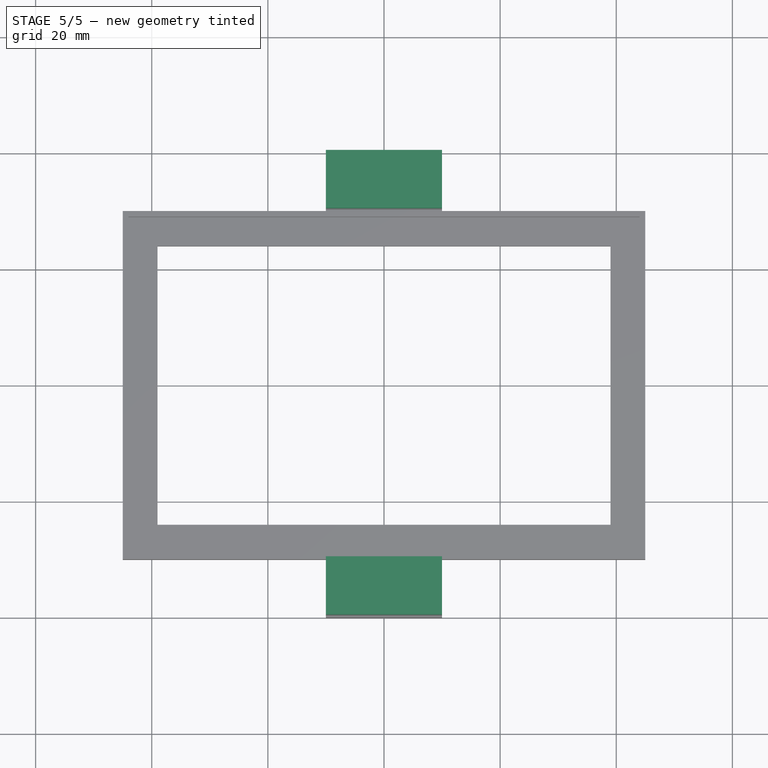
[diagram: stage 5 of 5 — top view after this stage's code; geometry added in this stage tinted green]
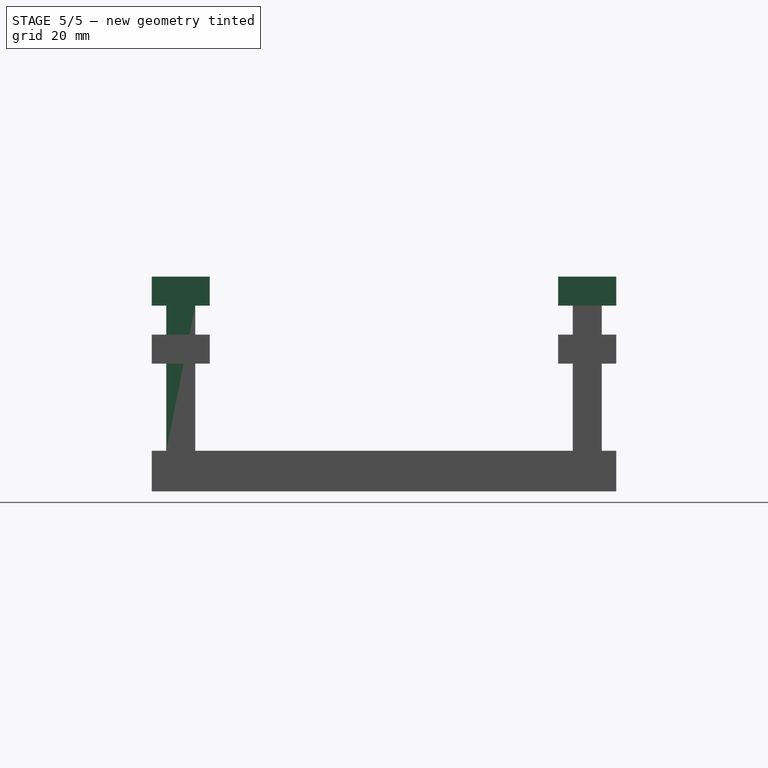
[diagram: stage 5 of 5 — right view after this stage's code; geometry added in this stage tinted green]
FEATURE [PartDesign::Pad] Pad002
  BaseFeature = -> Pad001
  Direction = (1,1,1)
  Length = 25
  Length2 = 100
  Profile = -> Sketch007
  Type = 0
FEATURE [Sketcher::SketchObject] Sketch008
  ExternalGeometry = -> [Pad002,Sketch004]
  FullyConstrained = true
  MapMode = 5
  Placement = pos=(0,0,32) rot=(0,0,1;0rad)
  Support = -> [Pad002]
  sketch-geometry (4):
    g0: LineSegment StartX=-10 StartY=-30 StartZ=0 EndX=10 EndY=-30 EndZ=0
    g1: LineSegment StartX=10 StartY=-30 StartZ=0 EndX=10 EndY=-40 EndZ=0
    g2: LineSegment StartX=10 StartY=-40 StartZ=0 EndX=-10 EndY=-40 EndZ=0
    g3: LineSegment StartX=-10 StartY=-40 StartZ=0 EndX=-10 EndY=-30 EndZ=0
  constraints (10):
    c: Coincident(g0,g1)
    c: Coincident(g1,g2)
    c: Coincident(g2,g3)
    c: Coincident(g3,g0)
    c: Horizontal(g0)
    c: Horizontal(g2)
    c: Vertical(g1)
    c: Vertical(g3)
    c: Coincident(g0,g-4)
    c: Coincident(g1,g-6)
FEATURE [Sketcher::SketchObject] Sketch009
  ExternalGeometry = -> [Sketch004]
  FullyConstrained = true
  MapMode = 5
  Placement = pos=(0,0,32) rot=(0,0,1;0rad)
  Support = -> [Pad002]
  sketch-geometry (4):
    g0: LineSegment StartX=-10 StartY=40 StartZ=0 EndX=10 EndY=40 EndZ=0
    g1: LineSegment StartX=10 StartY=40 StartZ=0 EndX=10 EndY=30 EndZ=0
    g2: LineSegment StartX=10 StartY=30 StartZ=0 EndX=-10 EndY=30 EndZ=0
    g3: LineSegment StartX=-10 StartY=30 StartZ=0 EndX=-10 EndY=40 EndZ=0
  constraints (10):
    c: Coincident(g0,g1)
    c: Coincident(g1,g2)
    c: Coincident(g2,g3)
    c: Coincident(g3,g0)
    c: Horizontal(g0)
    c: Horizontal(g2)
    c: Vertical(g1)
    c: Vertical(g3)
    c: Coincident(g0,g-4)
    c: Coincident(g1,g-5)
FEATURE [PartDesign::Pad] Pad003
  BaseFeature = -> Pad002
  Direction = (1,1,1)
  Length = 5
  Length2 = 100
  Profile = -> Sketch008
  Type = 0
FEATURE [PartDesign::Pad] Pad004
  BaseFeature = -> Pad003
  Direction = (1,1,1)
  Length = 5
  Length2 = 100
  Profile = -> Sketch009
  Type = 0
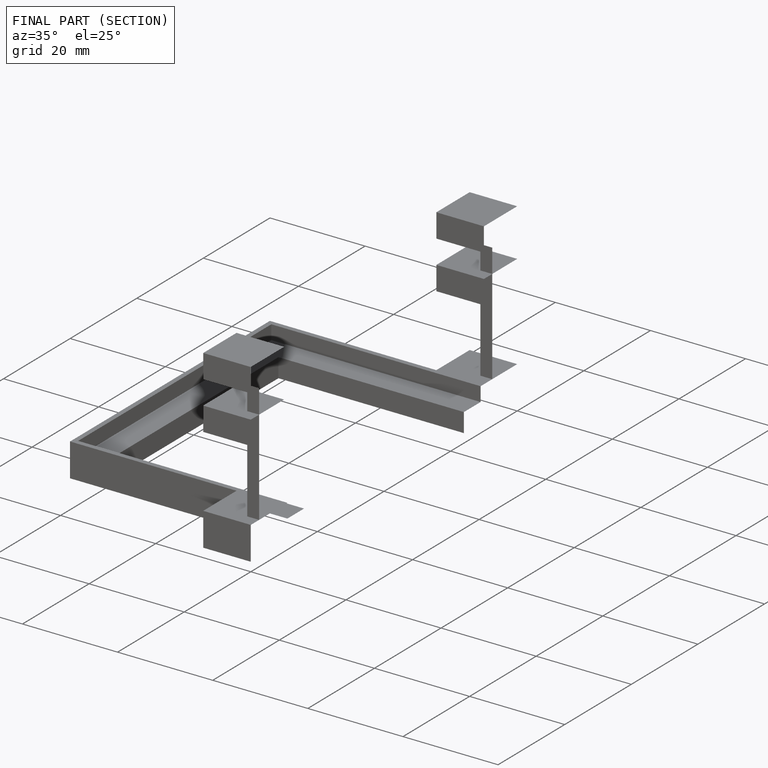
[diagram: finished part — half-section view (interior)]
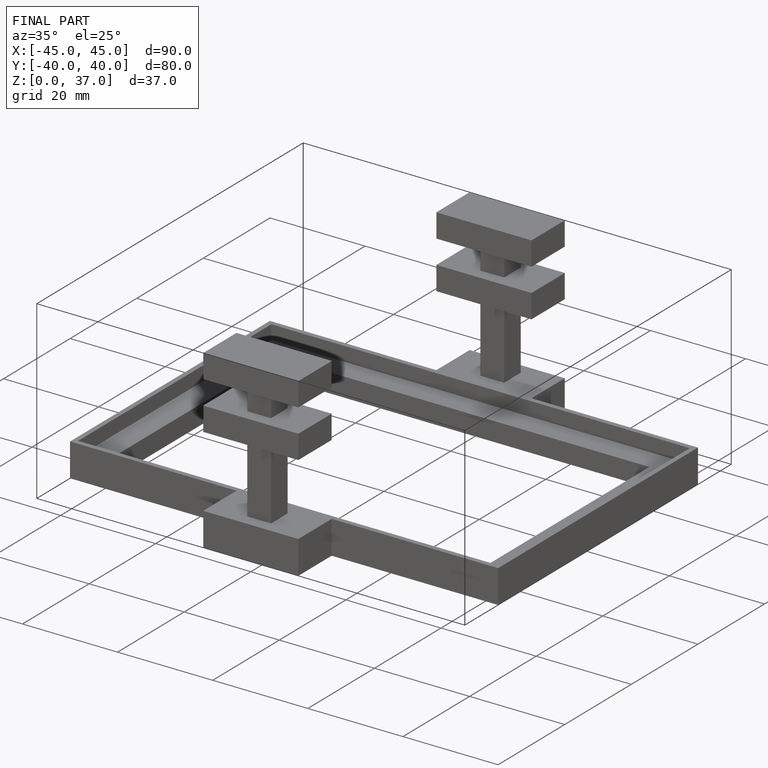
[diagram: finished part — iso view with bounding-box wireframe]
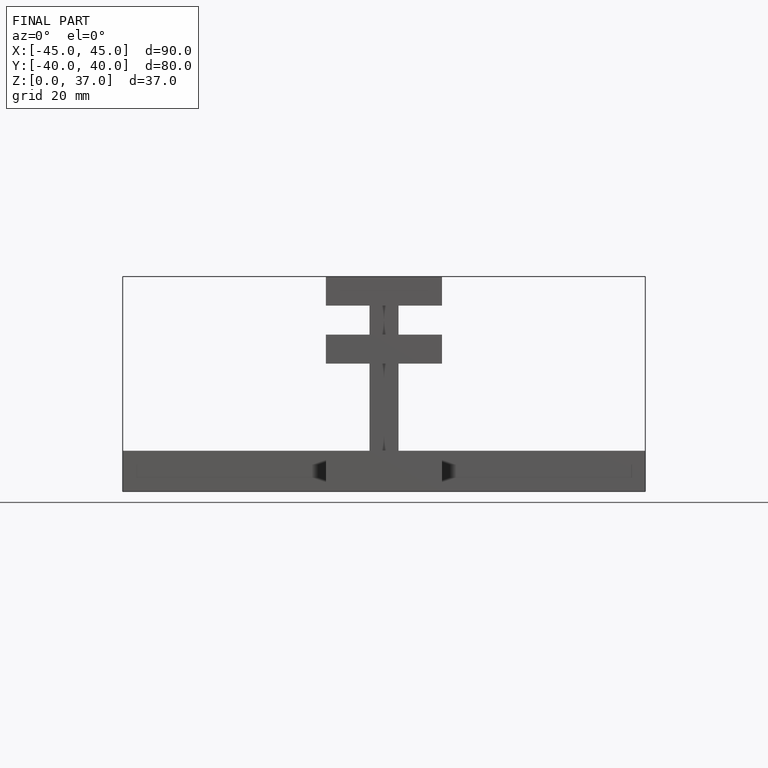
[diagram: finished part — front view with bounding-box wireframe]
